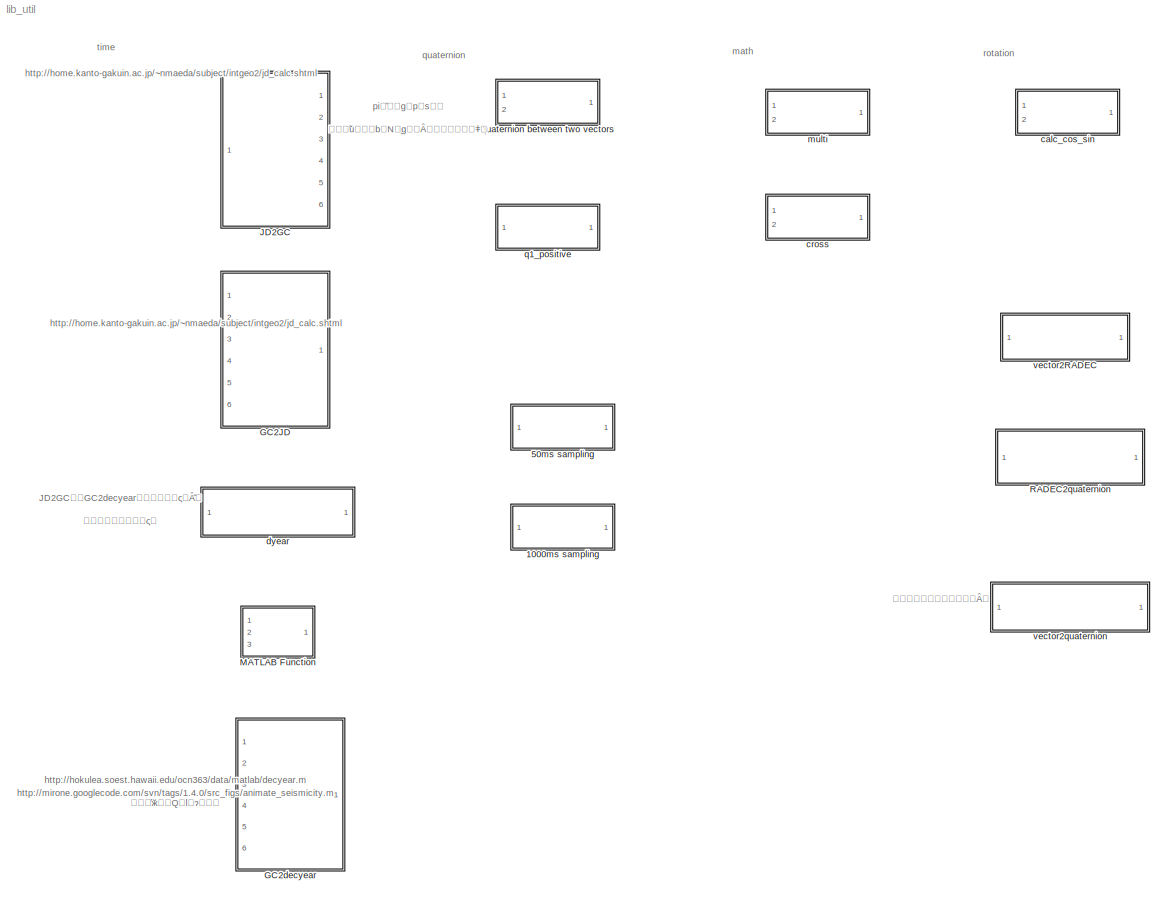
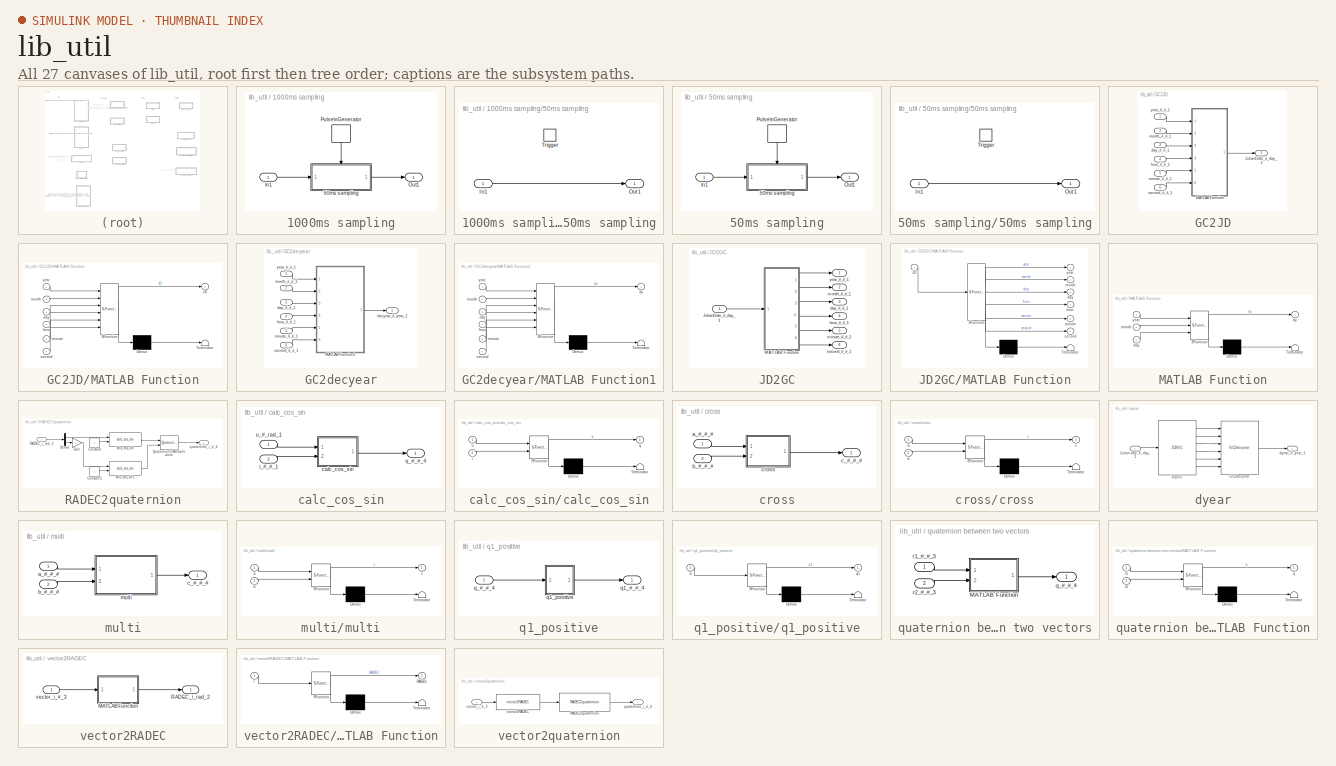
[diagram: thumbnail index - all 27 canvases of the model, root first then tree order]
MODEL lib_util
KIND library
BLOCK [SubSystem] 1000ms sampling
  FunctionWithSeparateData = off
  MaskHideContents = off
  MinAlgLoopOccurrences = off
  Opaque = off
  Ports = [1, 1]
  PropExecContextOutsideSubsystem = off
  RTWSystemCode = Auto
  RequestExecContextInheritance = off
  SID = 420
BLOCK [SubSystem] 1000ms sampling/50ms sampling
  FunctionWithSeparateData = off
  MaskHideContents = off
  MinAlgLoopOccurrences = off
  Opaque = off
  Ports = [1, 1, 0, 1]
  PropExecContextOutsideSubsystem = off
  RTWSystemCode = Auto
  RequestExecContextInheritance = off
  SID = 422
  TreatAsAtomicUnit = on
BLOCK [Inport] 1000ms sampling/50ms sampling/In1
  IconDisplay = Port number
  SID = 423
BLOCK [Outport] 1000ms sampling/50ms sampling/Out1
  IconDisplay = Port number
  SID = 425
BLOCK [TriggerPort] 1000ms sampling/50ms sampling/Trigger
  Ports = []
  SID = 424
  StatesWhenEnabling = held
BLOCK [Inport] 1000ms sampling/In1
  IconDisplay = Port number
  SID = 421
BLOCK [Outport] 1000ms sampling/Out1
  IconDisplay = Port number
  SID = 427
BLOCK [DiscretePulseGenerator] 1000ms sampling/Pulse\nGenerator
  Period = 1
  Ports = [0, 1]
  PulseType = Time based
  PulseWidth = 20
  SID = 426
BLOCK [SubSystem] 50ms sampling
  FunctionWithSeparateData = off
  MaskHideContents = off
  MinAlgLoopOccurrences = off
  Opaque = off
  Ports = [1, 1]
  PropExecContextOutsideSubsystem = off
  RTWSystemCode = Auto
  RequestExecContextInheritance = off
  SID = 428
BLOCK [SubSystem] 50ms sampling/50ms sampling
  FunctionWithSeparateData = off
  MaskHideContents = off
  MinAlgLoopOccurrences = off
  Opaque = off
  Ports = [1, 1, 0, 1]
  PropExecContextOutsideSubsystem = off
  RTWSystemCode = Auto
  RequestExecContextInheritance = off
  SID = 430
  TreatAsAtomicUnit = on
BLOCK [Inport] 50ms sampling/50ms sampling/In1
  IconDisplay = Port number
  SID = 431
BLOCK [Outport] 50ms sampling/50ms sampling/Out1
  IconDisplay = Port number
  SID = 433
BLOCK [TriggerPort] 50ms sampling/50ms sampling/Trigger
  Ports = []
  SID = 432
  StatesWhenEnabling = held
BLOCK [Inport] 50ms sampling/In1
  IconDisplay = Port number
  SID = 429
BLOCK [Outport] 50ms sampling/Out1
  IconDisplay = Port number
  SID = 435
BLOCK [DiscretePulseGenerator] 50ms sampling/Pulse\nGenerator
  Period = 0.05
  Ports = [0, 1]
  PulseType = Time based
  PulseWidth = 20
  SID = 434
BLOCK [SubSystem] GC2JD
  FunctionWithSeparateData = off
  MaskHideContents = off
  MinAlgLoopOccurrences = off
  Opaque = off
  Ports = [6, 1]
  PropExecContextOutsideSubsystem = off
  RTWSystemCode = Auto
  RequestExecContextInheritance = off
  SID = 155
BLOCK [Outport] GC2JD/JulianDate_#_day_1
  IconDisplay = Port number
  SID = 163
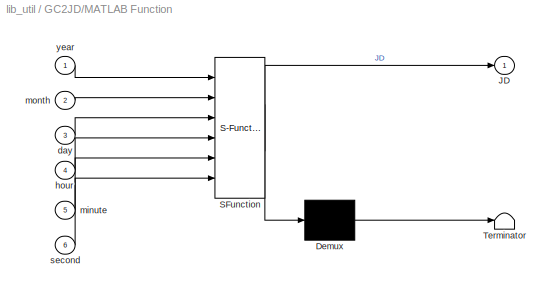
BLOCK [SubSystem] GC2JD/MATLAB Function
  ErrorFcn = Stateflow.Translate.translate
  FunctionWithSeparateData = off
  MaskDescription = Embedded MATLAB block
  MaskDisplay = bgColor = Simulink.Root.ColorString2Rgb(get_param(gcbh, 'BackgroundColor')); image(imread('private/eml_membrane_16.png','png','BackgroundColor',bgColor(1:3)),'center'); disp([10 10 'GC2JD']);
  MaskHideContents = off
  MaskIconFrame = on
  MaskIconOpaque = off
  MaskIconRotate = none
  MaskIconUnits = normalized
  MaskPortRotate = default
  MaskSelfModifiable = on
  MaskType = Stateflow
  MinAlgLoopOccurrences = off
  Opaque = off
  PermitHierarchicalResolution = ExplicitOnly
  Ports = [6, 1]
  PropExecContextOutsideSubsystem = off
  RTWSystemCode = Auto
  RequestExecContextInheritance = off
  SID = 162
  TreatAsAtomicUnit = on
BLOCK [Demux] GC2JD/MATLAB Function/ Demux 
  Outputs = 1
  Ports = [1, 1]
  SID = 162::24
BLOCK [S-Function] GC2JD/MATLAB Function/ SFunction 
  EnableBusSupport = off
  FunctionName = sf_sfun
  PortCounts = [6 2]
  Ports = [6, 2]
  SID = 162::23
  Tag = Stateflow S-Function lib_util 3
BLOCK [Terminator] GC2JD/MATLAB Function/ Terminator 
  SID = 162::26
BLOCK [Outport] GC2JD/MATLAB Function/JD
  IconDisplay = Port number
  SID = 162::5
BLOCK [Inport] GC2JD/MATLAB Function/day
  IconDisplay = Port number
  Port = 3
  SID = 162::19
BLOCK [Inport] GC2JD/MATLAB Function/hour
  IconDisplay = Port number
  Port = 4
  SID = 162::20
BLOCK [Inport] GC2JD/MATLAB Function/minute
  IconDisplay = Port number
  Port = 5
  SID = 162::21
BLOCK [Inport] GC2JD/MATLAB Function/month
  IconDisplay = Port number
  Port = 2
  SID = 162::18
BLOCK [Inport] GC2JD/MATLAB Function/second
  IconDisplay = Port number
  Port = 6
  SID = 162::22
BLOCK [Inport] GC2JD/MATLAB Function/year
  IconDisplay = Port number
  SID = 162::1
BLOCK [Inport] GC2JD/day_#_#_1
  IconDisplay = Port number
  Port = 3
  SID = 158
BLOCK [Inport] GC2JD/hour_#_#_1
  IconDisplay = Port number
  Port = 4
  SID = 159
BLOCK [Inport] GC2JD/minute_#_#_1
  IconDisplay = Port number
  Port = 5
  SID = 160
BLOCK [Inport] GC2JD/month_#_#_1
  IconDisplay = Port number
  Port = 2
  SID = 157
BLOCK [Inport] GC2JD/second_#_#_1
  IconDisplay = Port number
  Port = 6
  SID = 161
BLOCK [Inport] GC2JD/year_#_#_1
  IconDisplay = Port number
  SID = 156
BLOCK [SubSystem] GC2decyear
  FunctionWithSeparateData = off
  MaskHideContents = off
  MinAlgLoopOccurrences = off
  Opaque = off
  Ports = [6, 1]
  PropExecContextOutsideSubsystem = off
  RTWSystemCode = Auto
  RequestExecContextInheritance = off
  SID = 248
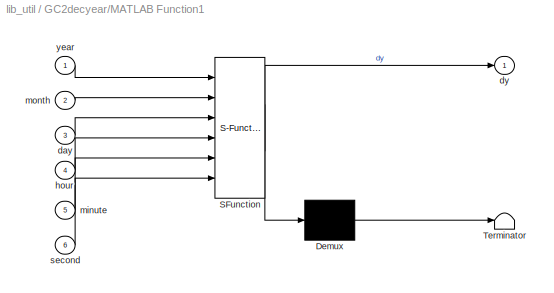
BLOCK [SubSystem] GC2decyear/MATLAB Function1
  ErrorFcn = Stateflow.Translate.translate
  FunctionWithSeparateData = off
  MaskDescription = Embedded MATLAB block
  MaskDisplay = bgColor = Simulink.Root.ColorString2Rgb(get_param(gcbh, 'BackgroundColor')); image(imread('private/eml_membrane_16.png','png','BackgroundColor',bgColor(1:3)),'center'); disp([10 10 'dec_year']);
  MaskHideContents = off
  MaskIconFrame = on
  MaskIconOpaque = off
  MaskIconRotate = none
  MaskIconUnits = normalized
  MaskPortRotate = default
  MaskSelfModifiable = on
  MaskType = Stateflow
  MinAlgLoopOccurrences = off
  Opaque = off
  PermitHierarchicalResolution = ExplicitOnly
  Ports = [6, 1]
  PropExecContextOutsideSubsystem = off
  RTWSystemCode = Auto
  RequestExecContextInheritance = off
  SID = 251
  TreatAsAtomicUnit = on
BLOCK [Demux] GC2decyear/MATLAB Function1/ Demux 
  Outputs = 1
  Ports = [1, 1]
  SID = 251::26
BLOCK [S-Function] GC2decyear/MATLAB Function1/ SFunction 
  EnableBusSupport = off
  FunctionName = sf_sfun
  PortCounts = [6 2]
  Ports = [6, 2]
  SID = 251::25
  Tag = Stateflow S-Function lib_util 7
BLOCK [Terminator] GC2decyear/MATLAB Function1/ Terminator 
  SID = 251::28
BLOCK [Inport] GC2decyear/MATLAB Function1/day
  IconDisplay = Port number
  Port = 3
  SID = 251::21
BLOCK [Outport] GC2decyear/MATLAB Function1/dy
  IconDisplay = Port number
  SID = 251::5
BLOCK [Inport] GC2decyear/MATLAB Function1/hour
  IconDisplay = Port number
  Port = 4
  SID = 251::22
BLOCK [Inport] GC2decyear/MATLAB Function1/minute
  IconDisplay = Port number
  Port = 5
  SID = 251::23
BLOCK [Inport] GC2decyear/MATLAB Function1/month
  IconDisplay = Port number
  Port = 2
  SID = 251::20
BLOCK [Inport] GC2decyear/MATLAB Function1/second
  IconDisplay = Port number
  Port = 6
  SID = 251::24
BLOCK [Inport] GC2decyear/MATLAB Function1/year
  IconDisplay = Port number
  SID = 251::19
BLOCK [Inport] GC2decyear/day_#_#_1
  IconDisplay = Port number
  Port = 3
  SID = 254
BLOCK [Outport] GC2decyear/decyear_#_year_1
  IconDisplay = Port number
  SID = 250
BLOCK [Inport] GC2decyear/hour_#_#_1
  IconDisplay = Port number
  Port = 4
  SID = 255
BLOCK [Inport] GC2decyear/minute_#_#_1
  IconDisplay = Port number
  Port = 5
  SID = 256
BLOCK [Inport] GC2decyear/month_#_#_1
  IconDisplay = Port number
  Port = 2
  SID = 253
BLOCK [Inport] GC2decyear/second_#_#_1
  IconDisplay = Port number
  Port = 6
  SID = 257
BLOCK [Inport] GC2decyear/year_#_#_1
  IconDisplay = Port number
  SID = 252
BLOCK [SubSystem] JD2GC
  FunctionWithSeparateData = off
  MaskHideContents = off
  MinAlgLoopOccurrences = off
  Opaque = off
  Ports = [1, 6]
  PropExecContextOutsideSubsystem = off
  RTWSystemCode = Auto
  RequestExecContextInheritance = off
  SID = 146
BLOCK [Inport] JD2GC/JulianDate_#_day_1
  IconDisplay = Port number
  SID = 147
BLOCK [SubSystem] JD2GC/MATLAB Function
  ErrorFcn = Stateflow.Translate.translate
  FunctionWithSeparateData = off
  MaskDescription = Embedded MATLAB block
  MaskDisplay = bgColor = Simulink.Root.ColorString2Rgb(get_param(gcbh, 'BackgroundColor')); image(imread('private/eml_membrane_16.png','png','BackgroundColor',bgColor(1:3)),'center'); disp([10 10 'JD2GC']);
  MaskHideContents = off
  MaskIconFrame = on
  MaskIconOpaque = off
  MaskIconRotate = none
  MaskIconUnits = normalized
  MaskPortRotate = default
  MaskSelfModifiable = on
  MaskType = Stateflow
  MinAlgLoopOccurrences = off
  Opaque = off
  PermitHierarchicalResolution = ExplicitOnly
  Ports = [1, 6]
  PropExecContextOutsideSubsystem = off
  RTWSystemCode = Auto
  RequestExecContextInheritance = off
  SID = 148
  TreatAsAtomicUnit = on
BLOCK [Demux] JD2GC/MATLAB Function/ Demux 
  Outputs = 1
  Ports = [1, 1]
  SID = 148::24
BLOCK [S-Function] JD2GC/MATLAB Function/ SFunction 
  EnableBusSupport = off
  FunctionName = sf_sfun
  PortCounts = [1 7]
  Ports = [1, 7]
  SID = 148::23
  Tag = Stateflow S-Function lib_util 2
BLOCK [Terminator] JD2GC/MATLAB Function/ Terminator 
  SID = 148::26
BLOCK [Inport] JD2GC/MATLAB Function/JD
  IconDisplay = Port number
  SID = 148::1
BLOCK [Outport] JD2GC/MATLAB Function/day
  IconDisplay = Port number
  Port = 3
  SID = 148::19
BLOCK [Outport] JD2GC/MATLAB Function/hour
  IconDisplay = Port number
  Port = 4
  SID = 148::20
BLOCK [Outport] JD2GC/MATLAB Function/minute
  IconDisplay = Port number
  Port = 5
  SID = 148::21
BLOCK [Outport] JD2GC/MATLAB Function/month
  IconDisplay = Port number
  Port = 2
  SID = 148::18
BLOCK [Outport] JD2GC/MATLAB Function/second
  IconDisplay = Port number
  Port = 6
  SID = 148::22
BLOCK [Outport] JD2GC/MATLAB Function/year
  IconDisplay = Port number
  SID = 148::5
BLOCK [Outport] JD2GC/day_#_#_1
  IconDisplay = Port number
  Port = 3
  SID = 151
BLOCK [Outport] JD2GC/hour_#_#_1
  IconDisplay = Port number
  Port = 4
  SID = 152
BLOCK [Outport] JD2GC/minute_#_#_1
  IconDisplay = Port number
  Port = 5
  SID = 153
BLOCK [Outport] JD2GC/month_#_#_1
  IconDisplay = Port number
  Port = 2
  SID = 150
BLOCK [Outport] JD2GC/second_#_#_1
  IconDisplay = Port number
  Port = 6
  SID = 154
BLOCK [Outport] JD2GC/year_#_#_1
  IconDisplay = Port number
  SID = 149
BLOCK [SubSystem] MATLAB Function
  ErrorFcn = Stateflow.Translate.translate
  FunctionWithSeparateData = off
  MaskDescription = Embedded MATLAB block
  MaskDisplay = bgColor = Simulink.Root.ColorString2Rgb(get_param(gcbh, 'BackgroundColor')); image(imread('private/eml_membrane_16.png','png','BackgroundColor',bgColor(1:3)),'center'); disp([10 10 'DOY']);
  MaskHideContents = off
  MaskIconFrame = on
  MaskIconOpaque = off
  MaskIconRotate = none
  MaskIconUnits = normalized
  MaskPortRotate = default
  MaskSelfModifiable = on
  MaskType = Stateflow
  MinAlgLoopOccurrences = off
  Opaque = off
  PermitHierarchicalResolution = ExplicitOnly
  Ports = [3, 1]
  PropExecContextOutsideSubsystem = off
  RTWSystemCode = Auto
  RequestExecContextInheritance = off
  SID = 520
  TreatAsAtomicUnit = on
BLOCK [Demux] MATLAB Function/ Demux 
  Outputs = 1
  Ports = [1, 1]
  SID = 520::15
BLOCK [S-Function] MATLAB Function/ SFunction 
  EnableBusSupport = off
  FunctionName = sf_sfun
  PortCounts = [3 2]
  Ports = [3, 2]
  SID = 520::14
  Tag = Stateflow S-Function lib_util 4
BLOCK [Terminator] MATLAB Function/ Terminator 
  SID = 520::17
BLOCK [Inport] MATLAB Function/day
  IconDisplay = Port number
  Port = 3
  SID = 520::19
BLOCK [Outport] MATLAB Function/dy
  IconDisplay = Port number
  SID = 520::5
BLOCK [Inport] MATLAB Function/month
  IconDisplay = Port number
  Port = 2
  SID = 520::18
BLOCK [Inport] MATLAB Function/year
  IconDisplay = Port number
  SID = 520::1
BLOCK [SubSystem] RADEC2quaternion
  FunctionWithSeparateData = off
  MaskHideContents = off
  MinAlgLoopOccurrences = off
  Opaque = off
  Ports = [1, 1]
  PropExecContextOutsideSubsystem = off
  RTWSystemCode = Auto
  RequestExecContextInheritance = off
  SID = 172
BLOCK [Constant] RADEC2quaternion/Constant
  SID = 177
  Value = 3
BLOCK [Constant] RADEC2quaternion/Constant1
  SID = 204
  Value = 2
BLOCK [Demux] RADEC2quaternion/Demux
  DisplayOption = bar
  Outputs = 2
  Ports = [1, 2]
  SID = 175
BLOCK [Gain] RADEC2quaternion/Gain
  Gain = -1
  OutDataTypeStr = Inherit: Inherit via internal rule
  ParamDataTypeStr = Inherit: Inherit via internal rule
  SID = 316
  SaturateOnIntegerOverflow = off
BLOCK [Reference] RADEC2quaternion/Quaternion\nMultiplication  REF=aerolibutil/Quaternion\nMultiplication
  Ports = [2, 1]
  SID = 205
  SourceBlock = aerolibutil/Quaternion\nMultiplication
  SourceType = Quaternion Multiplication
BLOCK [Inport] RADEC2quaternion/RADEC_i_rad_2
  IconDisplay = Port number
  SID = 173
BLOCK [Reference] RADEC2quaternion/calc_cos_sin  REF=lib_util/calc_cos_sin  (lib defined in mdl_263c60253fa7)
  Ports = [2, 1]
  SID = 202
  SourceBlock = lib_util/calc_cos_sin
  SourceType = SubSystem
BLOCK [Reference] RADEC2quaternion/calc_cos_sin1  REF=lib_util/calc_cos_sin  (lib defined in mdl_263c60253fa7)
  Ports = [2, 1]
  SID = 203
  SourceBlock = lib_util/calc_cos_sin
  SourceType = SubSystem
BLOCK [Outport] RADEC2quaternion/quaternion_i_#_4
  IconDisplay = Port number
  SID = 174
BLOCK [SubSystem] calc_cos_sin
  FunctionWithSeparateData = off
  MaskHideContents = off
  MinAlgLoopOccurrences = off
  Opaque = off
  Ports = [2, 1]
  PropExecContextOutsideSubsystem = off
  RTWSystemCode = Auto
  RequestExecContextInheritance = off
  SID = 196
BLOCK [SubSystem] calc_cos_sin/calc_cos_sin
  ErrorFcn = Stateflow.Translate.translate
  FunctionWithSeparateData = off
  MaskDescription = Embedded MATLAB block
  MaskDisplay = bgColor = Simulink.Root.ColorString2Rgb(get_param(gcbh, 'BackgroundColor')); image(imread('private/eml_membrane_16.png','png','BackgroundColor',bgColor(1:3)),'center'); disp([10 10 'sankaku']);
  MaskHideContents = off
  MaskIconFrame = on
  MaskIconOpaque = off
  MaskIconRotate = none
  MaskIconUnits = normalized
  MaskPortRotate = default
  MaskSelfModifiable = on
  MaskType = Stateflow
  MinAlgLoopOccurrences = off
  Opaque = off
  PermitHierarchicalResolution = ExplicitOnly
  Ports = [2, 1]
  PropExecContextOutsideSubsystem = off
  RTWSystemCode = Auto
  RequestExecContextInheritance = off
  SID = 199
  TreatAsAtomicUnit = on
BLOCK [Demux] calc_cos_sin/calc_cos_sin/ Demux 
  Outputs = 1
  Ports = [1, 1]
  SID = 199::21
BLOCK [S-Function] calc_cos_sin/calc_cos_sin/ SFunction 
  EnableBusSupport = off
  FunctionName = sf_sfun
  PortCounts = [2 2]
  Ports = [2, 2]
  SID = 199::20
  Tag = Stateflow S-Function lib_util 11
BLOCK [Terminator] calc_cos_sin/calc_cos_sin/ Terminator 
  SID = 199::23
BLOCK [Inport] calc_cos_sin/calc_cos_sin/i
  IconDisplay = Port number
  Port = 2
  SID = 199::19
BLOCK [Outport] calc_cos_sin/calc_cos_sin/q
  IconDisplay = Port number
  SID = 199::5
BLOCK [Inport] calc_cos_sin/calc_cos_sin/u
  IconDisplay = Port number
  SID = 199::1
BLOCK [Inport] calc_cos_sin/i_#_#_1
  IconDisplay = Port number
  Port = 2
  SID = 200
BLOCK [Outport] calc_cos_sin/q_#_#_4
  IconDisplay = Port number
  SID = 198
BLOCK [Inport] calc_cos_sin/u_#_rad_1
  IconDisplay = Port number
  SID = 197
BLOCK [SubSystem] cross
  FunctionWithSeparateData = off
  MaskHideContents = off
  MinAlgLoopOccurrences = off
  Opaque = off
  Ports = [2, 1]
  PropExecContextOutsideSubsystem = off
  RTWSystemCode = Auto
  RequestExecContextInheritance = off
  SID = 191
BLOCK [Inport] cross/a_#_#_#
  IconDisplay = Port number
  SID = 192
BLOCK [Inport] cross/b_#_#_#
  IconDisplay = Port number
  Port = 2
  SID = 195
BLOCK [Outport] cross/c_#_#_#
  IconDisplay = Port number
  SID = 193
BLOCK [SubSystem] cross/cross
  ErrorFcn = Stateflow.Translate.translate
  FunctionWithSeparateData = off
  MaskDescription = Embedded MATLAB block
  MaskDisplay = bgColor = Simulink.Root.ColorString2Rgb(get_param(gcbh, 'BackgroundColor')); image(imread('private/eml_membrane_16.png','png','BackgroundColor',bgColor(1:3)),'center'); disp([10 10 'fcn']);  <repeated x3 — deduplicated; at blocks: cross, q1_positive, MATLAB Function>
  MaskHideContents = off
  MaskIconFrame = on
  MaskIconOpaque = off
  MaskIconRotate = none
  MaskIconUnits = normalized
  MaskPortRotate = default
  MaskSelfModifiable = on
  MaskType = Stateflow
  MinAlgLoopOccurrences = off
  Opaque = off
  PermitHierarchicalResolution = ExplicitOnly
  Ports = [2, 1]
  PropExecContextOutsideSubsystem = off
  RTWSystemCode = Auto
  RequestExecContextInheritance = off
  SID = 194
  TreatAsAtomicUnit = on
BLOCK [Demux] cross/cross/ Demux 
  Outputs = 1
  Ports = [1, 1]
  SID = 194::22
BLOCK [S-Function] cross/cross/ SFunction 
  EnableBusSupport = off
  FunctionName = sf_sfun
  PortCounts = [2 2]
  Ports = [2, 2]
  SID = 194::21
  Tag = Stateflow S-Function lib_util 14
BLOCK [Terminator] cross/cross/ Terminator 
  SID = 194::24
BLOCK [Inport] cross/cross/a
  IconDisplay = Port number
  SID = 194::19
BLOCK [Inport] cross/cross/b
  IconDisplay = Port number
  Port = 2
  SID = 194::18
BLOCK [Outport] cross/cross/c
  IconDisplay = Port number
  SID = 194::20
BLOCK [SubSystem] dyear
  FunctionWithSeparateData = off
  MaskHideContents = off
  MinAlgLoopOccurrences = off
  Opaque = off
  Ports = [1, 1]
  PropExecContextOutsideSubsystem = off
  RTWSystemCode = Auto
  RequestExecContextInheritance = off
  SID = 178
BLOCK [Reference] dyear/GC2decyear  REF=lib_util/GC2decyear  (lib defined in mdl_263c60253fa7)
  Ports = [6, 1]
  SID = 265
  SourceBlock = lib_util/GC2decyear
  SourceType = SubSystem
BLOCK [Reference] dyear/JD2GC  REF=lib_util/JD2GC  (lib defined in mdl_263c60253fa7)
  Ports = [1, 6]
  SID = 258
  SourceBlock = lib_util/JD2GC
  SourceType = SubSystem
BLOCK [Inport] dyear/Julian day_#_day_1
  IconDisplay = Port number
  SID = 179
BLOCK [Outport] dyear/dyear_#_year_1
  IconDisplay = Port number
  SID = 180
BLOCK [SubSystem] multi
  FunctionWithSeparateData = off
  MaskHideContents = off
  MinAlgLoopOccurrences = off
  Opaque = off
  Ports = [2, 1]
  PropExecContextOutsideSubsystem = off
  RTWSystemCode = Auto
  RequestExecContextInheritance = off
  SID = 186
BLOCK [Inport] multi/a_#_#_#
  IconDisplay = Port number
  SID = 187
BLOCK [Inport] multi/b_#_#_#
  IconDisplay = Port number
  Port = 2
  SID = 190
BLOCK [Outport] multi/c_#_#_#
  IconDisplay = Port number
  SID = 188
BLOCK [SubSystem] multi/multi
  ErrorFcn = Stateflow.Translate.translate
  FunctionWithSeparateData = off
  MaskDescription = Embedded MATLAB block
  MaskDisplay = bgColor = Simulink.Root.ColorString2Rgb(get_param(gcbh, 'BackgroundColor')); image(imread('private/eml_membrane_16.png','png','BackgroundColor',bgColor(1:3)),'center'); disp([10 10 'multi']);
  MaskHideContents = off
  MaskIconFrame = on
  MaskIconOpaque = off
  MaskIconRotate = none
  MaskIconUnits = normalized
  MaskPortRotate = default
  MaskSelfModifiable = on
  MaskType = Stateflow
  MinAlgLoopOccurrences = off
  Opaque = off
  PermitHierarchicalResolution = ExplicitOnly
  Ports = [2, 1]
  PropExecContextOutsideSubsystem = off
  RTWSystemCode = Auto
  RequestExecContextInheritance = off
  SID = 189
  TreatAsAtomicUnit = on
BLOCK [Demux] multi/multi/ Demux 
  Outputs = 1
  Ports = [1, 1]
  SID = 189::28
BLOCK [S-Function] multi/multi/ SFunction 
  EnableBusSupport = off
  FunctionName = sf_sfun
  PortCounts = [2 2]
  Ports = [2, 2]
  SID = 189::27
  Tag = Stateflow S-Function lib_util 5
BLOCK [Terminator] multi/multi/ Terminator 
  SID = 189::30
BLOCK [Inport] multi/multi/a
  IconDisplay = Port number
  SID = 189::1
BLOCK [Inport] multi/multi/b
  IconDisplay = Port number
  Port = 2
  SID = 189::26
BLOCK [Outport] multi/multi/c
  IconDisplay = Port number
  SID = 189::5
BLOCK [SubSystem] q1_positive
  FunctionWithSeparateData = off
  MaskHideContents = off
  MinAlgLoopOccurrences = off
  Opaque = off
  Ports = [1, 1]
  PropExecContextOutsideSubsystem = off
  RTWSystemCode = Auto
  RequestExecContextInheritance = off
  SID = 182
BLOCK [Outport] q1_positive/q1_#_#_4
  IconDisplay = Port number
  SID = 184
BLOCK [SubSystem] q1_positive/q1_positive
  ErrorFcn = Stateflow.Translate.translate
  FunctionWithSeparateData = off
  MaskDescription = Embedded MATLAB block
  MaskHideContents = off
  MaskIconFrame = on
  MaskIconOpaque = off
  MaskIconRotate = none
  MaskIconUnits = normalized
  MaskPortRotate = default
  MaskSelfModifiable = on
  MaskType = Stateflow
  MinAlgLoopOccurrences = off
  Opaque = off
  PermitHierarchicalResolution = ExplicitOnly
  Ports = [1, 1]
  PropExecContextOutsideSubsystem = off
  RTWSystemCode = Auto
  RequestExecContextInheritance = off
  SID = 185
  TreatAsAtomicUnit = on
BLOCK [Demux] q1_positive/q1_positive/ Demux 
  Outputs = 1
  Ports = [1, 1]
  SID = 185::19
BLOCK [S-Function] q1_positive/q1_positive/ SFunction 
  EnableBusSupport = off
  FunctionName = sf_sfun
  PortCounts = [1 2]
  Ports = [1, 2]
  SID = 185::18
  Tag = Stateflow S-Function lib_util 10
BLOCK [Terminator] q1_positive/q1_positive/ Terminator 
  SID = 185::21
BLOCK [Inport] q1_positive/q1_positive/q
  IconDisplay = Port number
  SID = 185::1
BLOCK [Outport] q1_positive/q1_positive/q1
  IconDisplay = Port number
  SID = 185::5
BLOCK [Inport] q1_positive/q_#_#_4
  IconDisplay = Port number
  SID = 183
BLOCK [SubSystem] quaternion between two vectors
  FunctionWithSeparateData = off
  MaskHideContents = off
  MinAlgLoopOccurrences = off
  Opaque = off
  Ports = [2, 1]
  PropExecContextOutsideSubsystem = off
  RTWSystemCode = Auto
  RequestExecContextInheritance = off
  SID = 24
BLOCK [SubSystem] quaternion between two vectors/MATLAB Function
  ErrorFcn = Stateflow.Translate.translate
  FunctionWithSeparateData = off
  MaskDescription = Embedded MATLAB block
  MaskHideContents = off
  MaskIconFrame = on
  MaskIconOpaque = off
  MaskIconRotate = none
  MaskIconUnits = normalized
  MaskPortRotate = default
  MaskSelfModifiable = on
  MaskType = Stateflow
  MinAlgLoopOccurrences = off
  Opaque = off
  PermitHierarchicalResolution = ExplicitOnly
  Ports = [2, 1]
  PropExecContextOutsideSubsystem = off
  RTWSystemCode = Auto
  RequestExecContextInheritance = off
  SID = 27
  TreatAsAtomicUnit = on
BLOCK [Demux] quaternion between two vectors/MATLAB Function/ Demux 
  Outputs = 1
  Ports = [1, 1]
  SID = 27::20
BLOCK [S-Function] quaternion between two vectors/MATLAB Function/ SFunction 
  EnableBusSupport = off
  FunctionName = sf_sfun
  PortCounts = [2 2]
  Ports = [2, 2]
  SID = 27::19
  Tag = Stateflow S-Function lib_util 1
BLOCK [Terminator] quaternion between two vectors/MATLAB Function/ Terminator 
  SID = 27::22
BLOCK [Outport] quaternion between two vectors/MATLAB Function/q
  IconDisplay = Port number
  SID = 27::5
BLOCK [Inport] quaternion between two vectors/MATLAB Function/r1
  IconDisplay = Port number
  SID = 27::1
BLOCK [Inport] quaternion between two vectors/MATLAB Function/r2
  IconDisplay = Port number
  Port = 2
  SID = 27::18
BLOCK [Outport] quaternion between two vectors/q_#_#_4
  IconDisplay = Port number
  SID = 28
BLOCK [Inport] quaternion between two vectors/r1_#_#_3
  IconDisplay = Port number
  SID = 25
BLOCK [Inport] quaternion between two vectors/r2_#_#_3
  IconDisplay = Port number
  Port = 2
  SID = 26
BLOCK [SubSystem] vector2RADEC
  FunctionWithSeparateData = off
  MaskHideContents = off
  MinAlgLoopOccurrences = off
  Opaque = off
  Ports = [1, 1]
  PropExecContextOutsideSubsystem = off
  RTWSystemCode = Auto
  RequestExecContextInheritance = off
  SID = 168
BLOCK [SubSystem] vector2RADEC/MATLAB Function
  ErrorFcn = Stateflow.Translate.translate
  FunctionWithSeparateData = off
  MaskDescription = Embedded MATLAB block
  MaskDisplay = bgColor = Simulink.Root.ColorString2Rgb(get_param(gcbh, 'BackgroundColor')); image(imread('private/eml_membrane_16.png','png','BackgroundColor',bgColor(1:3)),'center'); disp([10 10 'vector2RADEC']);
  MaskHideContents = off
  MaskIconFrame = on
  MaskIconOpaque = off
  MaskIconRotate = none
  MaskIconUnits = normalized
  MaskPortRotate = default
  MaskSelfModifiable = on
  MaskType = Stateflow
  MinAlgLoopOccurrences = off
  Opaque = off
  PermitHierarchicalResolution = ExplicitOnly
  Ports = [1, 1]
  PropExecContextOutsideSubsystem = off
  RTWSystemCode = Auto
  RequestExecContextInheritance = off
  SID = 171
  TreatAsAtomicUnit = on
BLOCK [Demux] vector2RADEC/MATLAB Function/ Demux 
  Outputs = 1
  Ports = [1, 1]
  SID = 171::19
BLOCK [S-Function] vector2RADEC/MATLAB Function/ SFunction 
  EnableBusSupport = off
  FunctionName = sf_sfun
  PortCounts = [1 2]
  Ports = [1, 2]
  SID = 171::18
  Tag = Stateflow S-Function lib_util 6
BLOCK [Terminator] vector2RADEC/MATLAB Function/ Terminator 
  SID = 171::21
BLOCK [Outport] vector2RADEC/MATLAB Function/RADEC
  IconDisplay = Port number
  SID = 171::5
BLOCK [Inport] vector2RADEC/MATLAB Function/r
  IconDisplay = Port number
  SID = 171::1
BLOCK [Outport] vector2RADEC/RADEC_i_rad_2
  IconDisplay = Port number
  SID = 170
BLOCK [Inport] vector2RADEC/vector_i_#_3
  IconDisplay = Port number
  SID = 169
BLOCK [SubSystem] vector2quaternion
  FunctionWithSeparateData = off
  MaskHideContents = off
  MinAlgLoopOccurrences = off
  Opaque = off
  Ports = [1, 1]
  PropExecContextOutsideSubsystem = off
  RTWSystemCode = Auto
  RequestExecContextInheritance = off
  SID = 266
BLOCK [Reference] vector2quaternion/RADEC2quaternion  REF=lib_util/RADEC2quaternion  (lib defined in mdl_263c60253fa7)
  Ports = [1, 1]
  SID = 272
  SourceBlock = lib_util/RADEC2quaternion
  SourceType = SubSystem
BLOCK [Outport] vector2quaternion/quaternion_i_#_4
  IconDisplay = Port number
  SID = 270
BLOCK [Reference] vector2quaternion/vector2RADEC  REF=lib_util/vector2RADEC  (lib defined in mdl_263c60253fa7)
  Ports = [1, 1]
  SID = 271
  SourceBlock = lib_util/vector2RADEC
  SourceType = SubSystem
BLOCK [Inport] vector2quaternion/vector_i_#_3
  IconDisplay = Port number
  SID = 269
ANNOTATION (root): JD2GCÆGC2decyearªØÏÝÈÌÅ\n±êàØÏÝ
ANNOTATION (root): http://home.kanto-gakuin.ac.jp/~nmaeda/subject/intgeo2/jd_calc.shtml
ANNOTATION (root): http://mirone.googlecode.com/svn/tags/1.4.0/src_figs/animate_seismicity.m\nhttp://hokulea.soest.hawaii.edu/ocn363/data/matlab/decyear.m\n±ÌÓðQlÉµ½
ANNOTATION (root): math
ANNOTATION (root): piÌgpsÂ\n±ÌubNÍgíÈ¢Ù¤ªÇ¢
ANNOTATION (root): quaternion
ANNOTATION (root): rotation
ANNOTATION (root): time
ANNOTATION (root): Ü¿ª¦æ¤ªÈ¢
LINE 1000ms sampling/50ms sampling/In1:1 -> 1000ms sampling/50ms sampling/Out1:1
LINE 1000ms sampling/50ms sampling:1 -> 1000ms sampling/Out1:1
LINE 1000ms sampling/In1:1 -> 1000ms sampling/50ms sampling:1
LINE 1000ms sampling/Pulse\nGenerator:1 -> 1000ms sampling/50ms sampling:trigger
LINE 50ms sampling/50ms sampling/In1:1 -> 50ms sampling/50ms sampling/Out1:1
LINE 50ms sampling/50ms sampling:1 -> 50ms sampling/Out1:1
LINE 50ms sampling/In1:1 -> 50ms sampling/50ms sampling:1
LINE 50ms sampling/Pulse\nGenerator:1 -> 50ms sampling/50ms sampling:trigger
LINE GC2JD/MATLAB Function/ Demux :1 -> GC2JD/MATLAB Function/ Terminator :1
LINE GC2JD/MATLAB Function/ SFunction :1 -> GC2JD/MATLAB Function/ Demux :1
LINE GC2JD/MATLAB Function/ SFunction :2 -> GC2JD/MATLAB Function/JD:1
LINE GC2JD/MATLAB Function/day:1 -> GC2JD/MATLAB Function/ SFunction :3
LINE GC2JD/MATLAB Function/hour:1 -> GC2JD/MATLAB Function/ SFunction :4
LINE GC2JD/MATLAB Function/minute:1 -> GC2JD/MATLAB Function/ SFunction :5
LINE GC2JD/MATLAB Function/month:1 -> GC2JD/MATLAB Function/ SFunction :2
LINE GC2JD/MATLAB Function/second:1 -> GC2JD/MATLAB Function/ SFunction :6
LINE GC2JD/MATLAB Function/year:1 -> GC2JD/MATLAB Function/ SFunction :1
LINE GC2JD/MATLAB Function:1 -> GC2JD/JulianDate_#_day_1:1
LINE GC2JD/day_#_#_1:1 -> GC2JD/MATLAB Function:3
LINE GC2JD/hour_#_#_1:1 -> GC2JD/MATLAB Function:4
LINE GC2JD/minute_#_#_1:1 -> GC2JD/MATLAB Function:5
LINE GC2JD/month_#_#_1:1 -> GC2JD/MATLAB Function:2
LINE GC2JD/second_#_#_1:1 -> GC2JD/MATLAB Function:6
LINE GC2JD/year_#_#_1:1 -> GC2JD/MATLAB Function:1
LINE GC2decyear/MATLAB Function1/ Demux :1 -> GC2decyear/MATLAB Function1/ Terminator :1
LINE GC2decyear/MATLAB Function1/ SFunction :1 -> GC2decyear/MATLAB Function1/ Demux :1
LINE GC2decyear/MATLAB Function1/ SFunction :2 -> GC2decyear/MATLAB Function1/dy:1
LINE GC2decyear/MATLAB Function1/day:1 -> GC2decyear/MATLAB Function1/ SFunction :3
LINE GC2decyear/MATLAB Function1/hour:1 -> GC2decyear/MATLAB Function1/ SFunction :4
LINE GC2decyear/MATLAB Function1/minute:1 -> GC2decyear/MATLAB Function1/ SFunction :5
LINE GC2decyear/MATLAB Function1/month:1 -> GC2decyear/MATLAB Function1/ SFunction :2
LINE GC2decyear/MATLAB Function1/second:1 -> GC2decyear/MATLAB Function1/ SFunction :6
LINE GC2decyear/MATLAB Function1/year:1 -> GC2decyear/MATLAB Function1/ SFunction :1
LINE GC2decyear/MATLAB Function1:1 -> GC2decyear/decyear_#_year_1:1
LINE GC2decyear/day_#_#_1:1 -> GC2decyear/MATLAB Function1:3
LINE GC2decyear/hour_#_#_1:1 -> GC2decyear/MATLAB Function1:4
LINE GC2decyear/minute_#_#_1:1 -> GC2decyear/MATLAB Function1:5
LINE GC2decyear/month_#_#_1:1 -> GC2decyear/MATLAB Function1:2
LINE GC2decyear/second_#_#_1:1 -> GC2decyear/MATLAB Function1:6
LINE GC2decyear/year_#_#_1:1 -> GC2decyear/MATLAB Function1:1
LINE JD2GC/JulianDate_#_day_1:1 -> JD2GC/MATLAB Function:1
LINE JD2GC/MATLAB Function/ Demux :1 -> JD2GC/MATLAB Function/ Terminator :1
LINE JD2GC/MATLAB Function/ SFunction :1 -> JD2GC/MATLAB Function/ Demux :1
LINE JD2GC/MATLAB Function/ SFunction :2 -> JD2GC/MATLAB Function/year:1
LINE JD2GC/MATLAB Function/ SFunction :3 -> JD2GC/MATLAB Function/month:1
LINE JD2GC/MATLAB Function/ SFunction :4 -> JD2GC/MATLAB Function/day:1
LINE JD2GC/MATLAB Function/ SFunction :5 -> JD2GC/MATLAB Function/hour:1
LINE JD2GC/MATLAB Function/ SFunction :6 -> JD2GC/MATLAB Function/minute:1
LINE JD2GC/MATLAB Function/ SFunction :7 -> JD2GC/MATLAB Function/second:1
LINE JD2GC/MATLAB Function/JD:1 -> JD2GC/MATLAB Function/ SFunction :1
LINE JD2GC/MATLAB Function:1 -> JD2GC/year_#_#_1:1
LINE JD2GC/MATLAB Function:2 -> JD2GC/month_#_#_1:1
LINE JD2GC/MATLAB Function:3 -> JD2GC/day_#_#_1:1
LINE JD2GC/MATLAB Function:4 -> JD2GC/hour_#_#_1:1
LINE JD2GC/MATLAB Function:5 -> JD2GC/minute_#_#_1:1
LINE JD2GC/MATLAB Function:6 -> JD2GC/second_#_#_1:1
LINE MATLAB Function/ Demux :1 -> MATLAB Function/ Terminator :1
LINE MATLAB Function/ SFunction :1 -> MATLAB Function/ Demux :1
LINE MATLAB Function/ SFunction :2 -> MATLAB Function/dy:1
LINE MATLAB Function/day:1 -> MATLAB Function/ SFunction :3
LINE MATLAB Function/month:1 -> MATLAB Function/ SFunction :2
LINE MATLAB Function/year:1 -> MATLAB Function/ SFunction :1
LINE RADEC2quaternion/Constant1:1 -> RADEC2quaternion/calc_cos_sin1:2
LINE RADEC2quaternion/Constant:1 -> RADEC2quaternion/calc_cos_sin:2
LINE RADEC2quaternion/Demux:1 -> RADEC2quaternion/calc_cos_sin:1
LINE RADEC2quaternion/Demux:2 -> RADEC2quaternion/Gain:1
LINE RADEC2quaternion/Gain:1 -> RADEC2quaternion/calc_cos_sin1:1
LINE RADEC2quaternion/Quaternion\nMultiplication:1 -> RADEC2quaternion/quaternion_i_#_4:1
LINE RADEC2quaternion/RADEC_i_rad_2:1 -> RADEC2quaternion/Demux:1
LINE RADEC2quaternion/calc_cos_sin1:1 -> RADEC2quaternion/Quaternion\nMultiplication:2
LINE RADEC2quaternion/calc_cos_sin:1 -> RADEC2quaternion/Quaternion\nMultiplication:1
LINE calc_cos_sin/calc_cos_sin/ Demux :1 -> calc_cos_sin/calc_cos_sin/ Terminator :1
LINE calc_cos_sin/calc_cos_sin/ SFunction :1 -> calc_cos_sin/calc_cos_sin/ Demux :1
LINE calc_cos_sin/calc_cos_sin/ SFunction :2 -> calc_cos_sin/calc_cos_sin/q:1
LINE calc_cos_sin/calc_cos_sin/i:1 -> calc_cos_sin/calc_cos_sin/ SFunction :2
LINE calc_cos_sin/calc_cos_sin/u:1 -> calc_cos_sin/calc_cos_sin/ SFunction :1
LINE calc_cos_sin/calc_cos_sin:1 -> calc_cos_sin/q_#_#_4:1
LINE calc_cos_sin/i_#_#_1:1 -> calc_cos_sin/calc_cos_sin:2
LINE calc_cos_sin/u_#_rad_1:1 -> calc_cos_sin/calc_cos_sin:1
LINE cross/a_#_#_#:1 -> cross/cross:1
LINE cross/b_#_#_#:1 -> cross/cross:2
LINE cross/cross/ Demux :1 -> cross/cross/ Terminator :1
LINE cross/cross/ SFunction :1 -> cross/cross/ Demux :1
LINE cross/cross/ SFunction :2 -> cross/cross/c:1
LINE cross/cross/a:1 -> cross/cross/ SFunction :1
LINE cross/cross/b:1 -> cross/cross/ SFunction :2
LINE cross/cross:1 -> cross/c_#_#_#:1
LINE dyear/GC2decyear:1 -> dyear/dyear_#_year_1:1
LINE dyear/JD2GC:1 -> dyear/GC2decyear:1
LINE dyear/JD2GC:2 -> dyear/GC2decyear:2
LINE dyear/JD2GC:3 -> dyear/GC2decyear:3
LINE dyear/JD2GC:4 -> dyear/GC2decyear:4
LINE dyear/JD2GC:5 -> dyear/GC2decyear:5
LINE dyear/JD2GC:6 -> dyear/GC2decyear:6
LINE dyear/Julian day_#_day_1:1 -> dyear/JD2GC:1
LINE multi/a_#_#_#:1 -> multi/multi:1
LINE multi/b_#_#_#:1 -> multi/multi:2
LINE multi/multi/ Demux :1 -> multi/multi/ Terminator :1
LINE multi/multi/ SFunction :1 -> multi/multi/ Demux :1
LINE multi/multi/ SFunction :2 -> multi/multi/c:1
LINE multi/multi/a:1 -> multi/multi/ SFunction :1
LINE multi/multi/b:1 -> multi/multi/ SFunction :2
LINE multi/multi:1 -> multi/c_#_#_#:1
LINE q1_positive/q1_positive/ Demux :1 -> q1_positive/q1_positive/ Terminator :1
LINE q1_positive/q1_positive/ SFunction :1 -> q1_positive/q1_positive/ Demux :1
LINE q1_positive/q1_positive/ SFunction :2 -> q1_positive/q1_positive/q1:1
LINE q1_positive/q1_positive/q:1 -> q1_positive/q1_positive/ SFunction :1
LINE q1_positive/q1_positive:1 -> q1_positive/q1_#_#_4:1
LINE q1_positive/q_#_#_4:1 -> q1_positive/q1_positive:1
LINE quaternion between two vectors/MATLAB Function/ Demux :1 -> quaternion between two vectors/MATLAB Function/ Terminator :1
LINE quaternion between two vectors/MATLAB Function/ SFunction :1 -> quaternion between two vectors/MATLAB Function/ Demux :1
LINE quaternion between two vectors/MATLAB Function/ SFunction :2 -> quaternion between two vectors/MATLAB Function/q:1
LINE quaternion between two vectors/MATLAB Function/r1:1 -> quaternion between two vectors/MATLAB Function/ SFunction :1
LINE quaternion between two vectors/MATLAB Function/r2:1 -> quaternion between two vectors/MATLAB Function/ SFunction :2
LINE quaternion between two vectors/MATLAB Function:1 -> quaternion between two vectors/q_#_#_4:1
LINE quaternion between two vectors/r1_#_#_3:1 -> quaternion between two vectors/MATLAB Function:1
LINE quaternion between two vectors/r2_#_#_3:1 -> quaternion between two vectors/MATLAB Function:2
LINE vector2RADEC/MATLAB Function/ Demux :1 -> vector2RADEC/MATLAB Function/ Terminator :1
LINE vector2RADEC/MATLAB Function/ SFunction :1 -> vector2RADEC/MATLAB Function/ Demux :1
LINE vector2RADEC/MATLAB Function/ SFunction :2 -> vector2RADEC/MATLAB Function/RADEC:1
LINE vector2RADEC/MATLAB Function/r:1 -> vector2RADEC/MATLAB Function/ SFunction :1
LINE vector2RADEC/MATLAB Function:1 -> vector2RADEC/RADEC_i_rad_2:1
LINE vector2RADEC/vector_i_#_3:1 -> vector2RADEC/MATLAB Function:1
LINE vector2quaternion/RADEC2quaternion:1 -> vector2quaternion/quaternion_i_#_4:1
LINE vector2quaternion/vector2RADEC:1 -> vector2quaternion/RADEC2quaternion:1
LINE vector2quaternion/vector_i_#_3:1 -> vector2quaternion/vector2RADEC:1
CHART quaternion between two vectors/MATLAB Function states=1 transitions=1
  STATE_LABEL 'eML_blk_kernel()'
CHART JD2GC/MATLAB Function states=1 transitions=1
  STATE_LABEL 'eML_blk_kernel()'
CHART GC2JD/MATLAB Function states=1 transitions=1
  STATE_LABEL 'eML_blk_kernel()'
CHART MATLAB Function states=1 transitions=1
  STATE_LABEL 'eML_blk_kernel()'
CHART multi/multi states=1 transitions=1
  STATE_LABEL 'eML_blk_kernel()'
CHART vector2RADEC/MATLAB Function states=1 transitions=1
  STATE_LABEL 'eML_blk_kernel()'
CHART GC2decyear/MATLAB Function1 states=1 transitions=1
  STATE_LABEL 'eML_blk_kernel()'
CHART q1_positive/q1_positive states=1 transitions=1
  STATE_LABEL 'eML_blk_kernel()'
CHART calc_cos_sin/calc_cos_sin states=1 transitions=1
  STATE_LABEL 'eML_blk_kernel()'
CHART cross/cross states=1 transitions=1
  STATE_LABEL 'eML_blk_kernel()'
